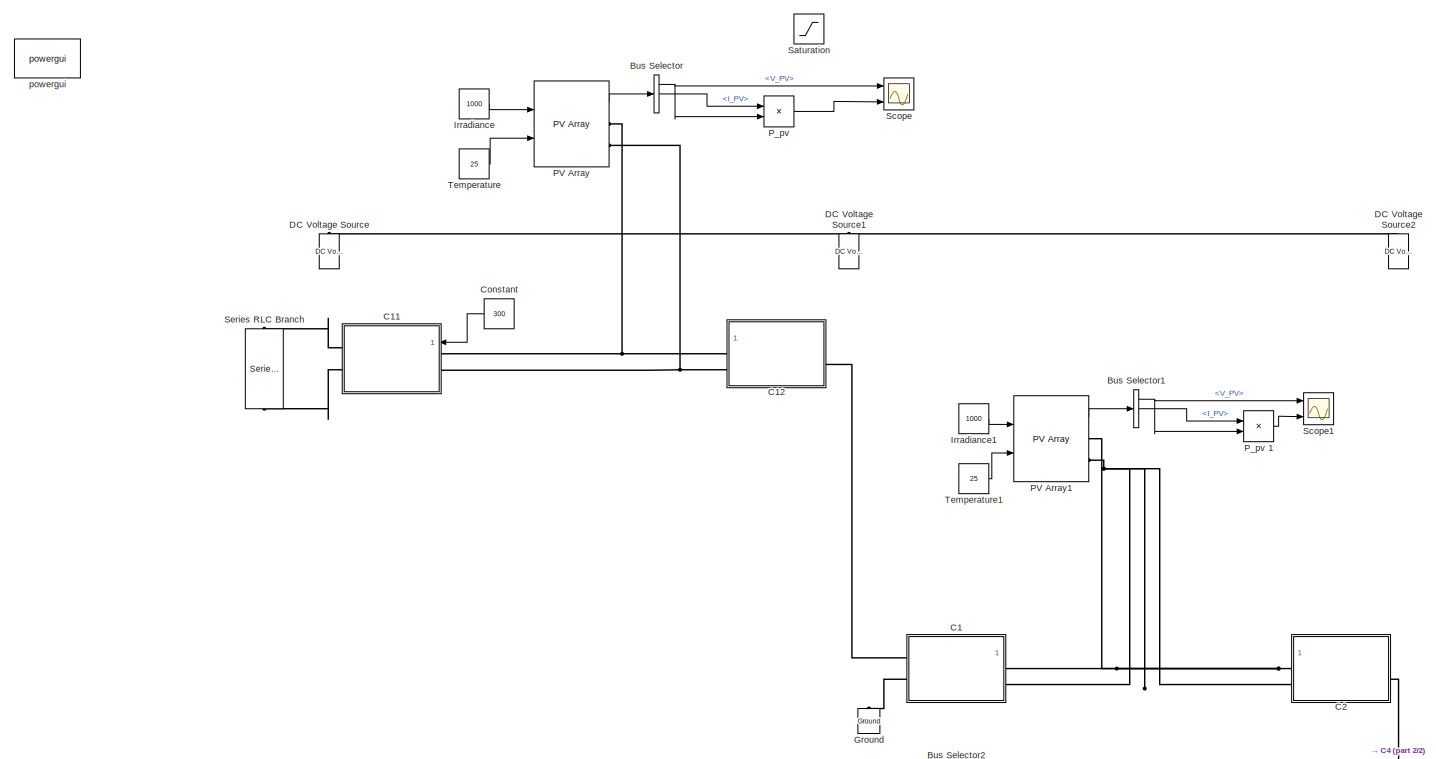
[diagram: root canvas - part 1/2, full width, middle band]
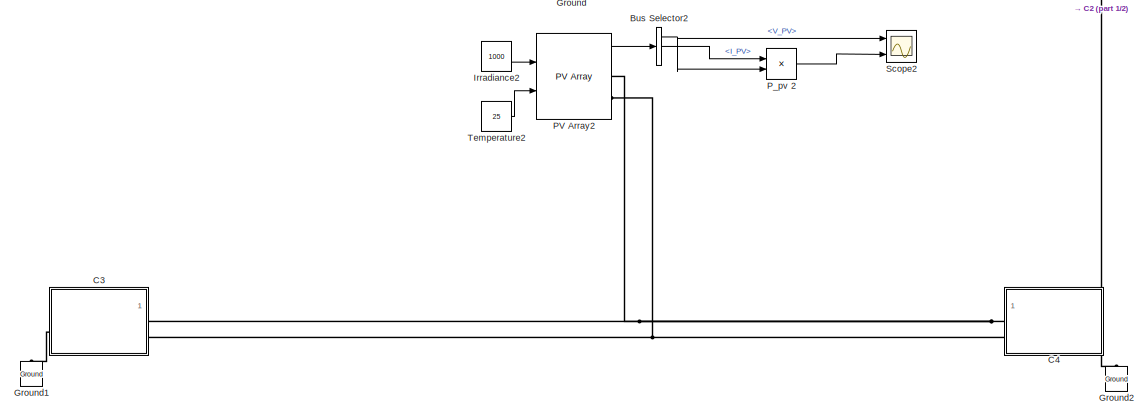
[diagram: root canvas - part 2/2, full width, bottom band]
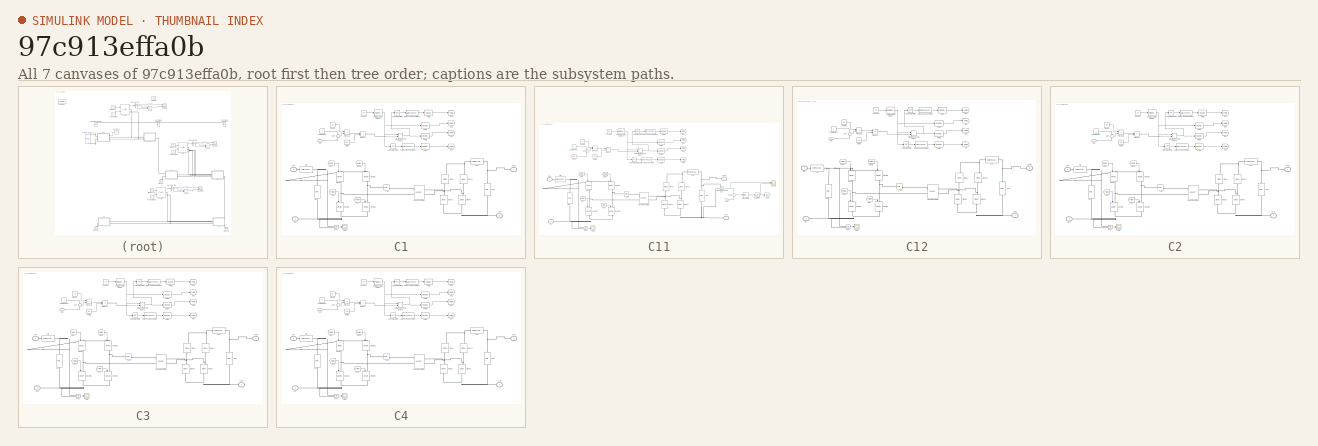
[diagram: thumbnail index - all 7 canvases of the model, root first then tree order]
MODEL slx_97c913effa0b
KIND model
CONFIG AbsTol = auto
CONFIG FixedStep = auto
CONFIG MaxStep = auto
CONFIG MinStep = auto
CONFIG RelTol = 1e-3
CONFIG SampleTimeConstraint = Unconstrained
CONFIG Solver = VariableStepAuto
CONFIG SolverMode = Auto
CONFIG SolverName = VariableStepAuto
CONFIG StartTime = 0.0
CONFIG StopTime = 0.02
BLOCK [BusSelector] Bus Selector
  OutputSignals = V_PV,I_PV,Irradiance (W/m2)
  Ports = [1, 3]
BLOCK [BusSelector] Bus Selector1
  OutputSignals = V_PV,I_PV,Irradiance (W/m2)
  Ports = [1, 3]
BLOCK [BusSelector] Bus Selector2
  OutputSignals = V_PV,I_PV,Irradiance (W/m2)
  Ports = [1, 3]
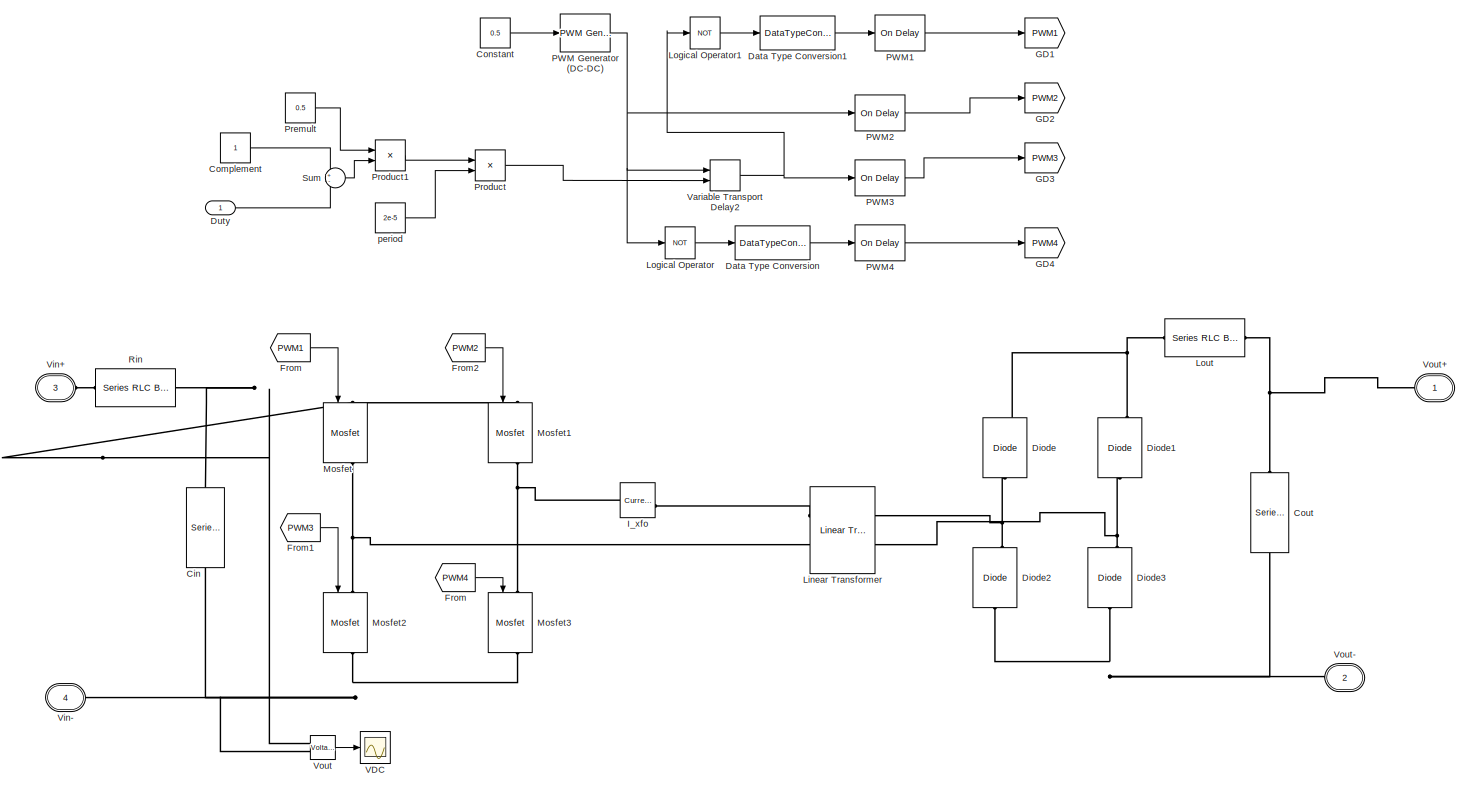
[diagram: C1 - part 1/1, most of the canvas]
BLOCK [SubSystem] C1
  Ports = [1, 0, 0, 0, 0, 2, 2]
  RequestExecContextInheritance = off
  Variant = off
BLOCK [Reference] C1/Cin  REF=powerlib/Elements/Series RLC Branch
  Ports = [0, 0, 0, 0, 0, 1, 1]
  SourceBlock = powerlib/Elements/Series RLC Branch
  SourceType = Series RLC Branch
BLOCK [Constant] C1/Complement
BLOCK [Constant] C1/Constant
  Value = 0.5
BLOCK [Reference] C1/Cout  REF=powerlib/Elements/Series RLC Branch
  Ports = [0, 0, 0, 0, 0, 1, 1]
  SourceBlock = powerlib/Elements/Series RLC Branch
  SourceType = Series RLC Branch
BLOCK [DataTypeConversion] C1/Data Type Conversion
  OutDataTypeStr = double
  RndMeth = Floor
  SaturateOnIntegerOverflow = off
BLOCK [DataTypeConversion] C1/Data Type Conversion1
  OutDataTypeStr = double
  RndMeth = Floor
  SaturateOnIntegerOverflow = off
BLOCK [Reference] C1/Diode  REF=powerlib/Power
Electronics/Diode
  Ports = [0, 1, 0, 0, 0, 1, 1]
  SourceBlock = powerlib/Power\nElectronics/Diode
  SourceType = Diode
BLOCK [Reference] C1/Diode1  REF=powerlib/Power
Electronics/Diode
  Ports = [0, 1, 0, 0, 0, 1, 1]
  SourceBlock = powerlib/Power\nElectronics/Diode
  SourceType = Diode
BLOCK [Reference] C1/Diode2  REF=powerlib/Power
Electronics/Diode
  Ports = [0, 1, 0, 0, 0, 1, 1]
  SourceBlock = powerlib/Power\nElectronics/Diode
  SourceType = Diode
BLOCK [Reference] C1/Diode3  REF=powerlib/Power
Electronics/Diode
  Ports = [0, 1, 0, 0, 0, 1, 1]
  SourceBlock = powerlib/Power\nElectronics/Diode
  SourceType = Diode
BLOCK [Inport] C1/Duty
  IconDisplay = Port number
BLOCK [From] C1/From
  GotoTag = PWM1
BLOCK [From] C1/From 
  GotoTag = PWM4
BLOCK [From] C1/From1
  GotoTag = PWM3
BLOCK [From] C1/From2
  GotoTag = PWM2
BLOCK [Goto] C1/GD1
  GotoTag = PWM1
BLOCK [Goto] C1/GD2
  GotoTag = PWM2
BLOCK [Goto] C1/GD3
  GotoTag = PWM3
BLOCK [Goto] C1/GD4 
  GotoTag = PWM4
BLOCK [Reference] C1/I_xfo  REF=powerlib/Measurements/Current Measurement
  Ports = [0, 1, 0, 0, 0, 1, 1]
  SourceBlock = powerlib/Measurements/Current Measurement
  SourceType = Current Measurement
  UserDataPersistent = on
BLOCK [Reference] C1/Linear Transformer  REF=powerlib/Elements/Linear Transformer
  Ports = [0, 0, 0, 0, 0, 2, 2]
  SourceBlock = powerlib/Elements/Linear Transformer
  SourceType = Linear Transformer
BLOCK [Logic] C1/Logical Operator
  AllPortsSameDT = off
  Inputs = 1
  Operator = NOT
  OutDataTypeStr = boolean
  Ports = [1, 1]
BLOCK [Logic] C1/Logical Operator1
  AllPortsSameDT = off
  Inputs = 1
  Operator = NOT
  OutDataTypeStr = boolean
  Ports = [1, 1]
BLOCK [Reference] C1/Lout  REF=powerlib/Elements/Series RLC Branch
  Ports = [0, 0, 0, 0, 0, 1, 1]
  SourceBlock = powerlib/Elements/Series RLC Branch
  SourceType = Series RLC Branch
BLOCK [Reference] C1/Mosfet  REF=powerlib/Power
Electronics/Mosfet
  Ports = [1, 1, 0, 0, 0, 1, 1]
  SourceBlock = powerlib/Power\nElectronics/Mosfet
  SourceType = Mosfet
BLOCK [Reference] C1/Mosfet1  REF=powerlib/Power
Electronics/Mosfet
  Ports = [1, 1, 0, 0, 0, 1, 1]
  SourceBlock = powerlib/Power\nElectronics/Mosfet
  SourceType = Mosfet
BLOCK [Reference] C1/Mosfet2  REF=powerlib/Power
Electronics/Mosfet
  Ports = [1, 1, 0, 0, 0, 1, 1]
  SourceBlock = powerlib/Power\nElectronics/Mosfet
  SourceType = Mosfet
BLOCK [Reference] C1/Mosfet3  REF=powerlib/Power
Electronics/Mosfet
  Ports = [1, 1, 0, 0, 0, 1, 1]
  SourceBlock = powerlib/Power\nElectronics/Mosfet
  SourceType = Mosfet
BLOCK [Reference] C1/PWM Generator (DC-DC)  REF=powerlib_meascontrol/Pulse & Signal
Generators/PWM Generator
(DC-DC)
  Ports = [1, 1]
  SourceBlock = powerlib_meascontrol/Pulse & Signal\nGenerators/PWM Generator\n(DC-DC)
  SourceType = PWM Generator (DC-DC)
BLOCK [Reference] C1/PWM1  REF=powerlib_meascontrol/Logic/On Delay
  Ports = [1, 1]
  SourceBlock = powerlib_meascontrol/Logic/On Delay
  SourceType = On/Off Delay
BLOCK [Reference] C1/PWM2  REF=powerlib_meascontrol/Logic/On Delay
  Ports = [1, 1]
  SourceBlock = powerlib_meascontrol/Logic/On Delay
  SourceType = On/Off Delay
BLOCK [Reference] C1/PWM3  REF=powerlib_meascontrol/Logic/On Delay
  Ports = [1, 1]
  SourceBlock = powerlib_meascontrol/Logic/On Delay
  SourceType = On/Off Delay
BLOCK [Reference] C1/PWM4  REF=powerlib_meascontrol/Logic/On Delay
  Ports = [1, 1]
  SourceBlock = powerlib_meascontrol/Logic/On Delay
  SourceType = On/Off Delay
BLOCK [Constant] C1/Premult
  Value = 0.5
BLOCK [Product] C1/Product
  InputSameDT = off
  OutDataTypeStr = Inherit: Inherit via internal rule
  Ports = [2, 1]
  RndMeth = Floor
  SaturateOnIntegerOverflow = off
BLOCK [Product] C1/Product1
  InputSameDT = off
  OutDataTypeStr = Inherit: Inherit via internal rule
  Ports = [2, 1]
  RndMeth = Floor
  SaturateOnIntegerOverflow = off
BLOCK [Reference] C1/Rin  REF=powerlib/Elements/Series RLC Branch
  Ports = [0, 0, 0, 0, 0, 1, 1]
  SourceBlock = powerlib/Elements/Series RLC Branch
  SourceType = Series RLC Branch
BLOCK [Sum] C1/Sum
  IconShape = round
  InputSameDT = off
  Inputs = +-
  OutDataTypeStr = Inherit: Inherit via internal rule
  Ports = [2, 1]
  SaturateOnIntegerOverflow = off
BLOCK [Scope] C1/VDC
  Ports = [1]
  ScopeSpecificationString = Simulink.scopes.TimeScopeBlockCfg('CurrentConfiguration', extmgr.ConfigurationSet(extmgr.Configuration('Core','General UI',true),extmgr.Configuration('Core','Source UI',true),extmgr.Configuration('Sources','WiredSimulink',true,'DataLoggingVariableName','ScopeData2'),extmgr.Configuration('Visuals','Time Domain',true,'SerializedDisplays',{struct('MinYLimReal','288.4827','MaxYLimReal','337.52032','YL...<+1417ch>  <repeated x6 — deduplicated; at blocks: VDC>
BLOCK [VariableTransportDelay] C1/Variable Transport Delay2
  MaximumDelay = 10
  Ports = [2, 1]
  ZeroDelay = on
BLOCK [PMIOPort] C1/Vin+
  Port = 3
  Side = Left
  Tag = PMCPort
BLOCK [PMIOPort] C1/Vin-
  Port = 4
  Side = Left
  Tag = PMCPort
BLOCK [Reference] C1/Vout  REF=powerlib/Measurements/Voltage Measurement
  Ports = [0, 1, 0, 0, 0, 2]
  SourceBlock = powerlib/Measurements/Voltage Measurement
  SourceType = Voltage Measurement
  UserDataPersistent = on
BLOCK [PMIOPort] C1/Vout+
  Port = 1
  Side = Right
  Tag = PMCPort
BLOCK [PMIOPort] C1/Vout-
  Port = 2
  Side = Right
  Tag = PMCPort
BLOCK [Constant] C1/period 
  Value = 2e-5
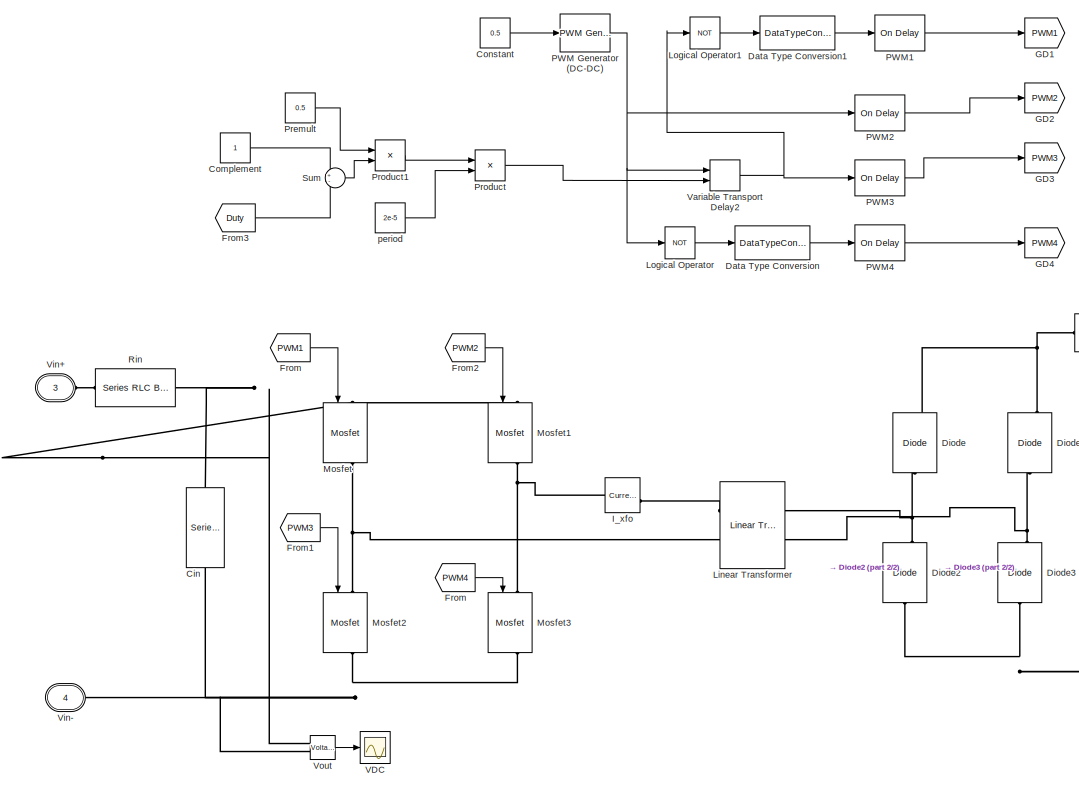
[diagram: C11 - part 1/2, left side, full height]
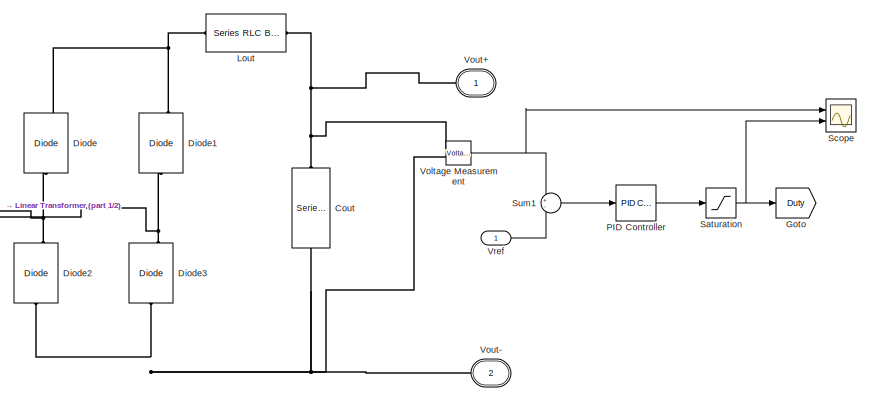
[diagram: C11 - part 2/2, middle right region]
BLOCK [SubSystem] C11
  Ports = [1, 0, 0, 0, 0, 2, 2]
  RequestExecContextInheritance = off
  Variant = off
BLOCK [Reference] C11/Cin  REF=powerlib/Elements/Series RLC Branch
  Ports = [0, 0, 0, 0, 0, 1, 1]
  SourceBlock = powerlib/Elements/Series RLC Branch
  SourceType = Series RLC Branch
BLOCK [Constant] C11/Complement
BLOCK [Constant] C11/Constant
  Value = 0.5
BLOCK [Reference] C11/Cout  REF=powerlib/Elements/Series RLC Branch
  Ports = [0, 0, 0, 0, 0, 1, 1]
  SourceBlock = powerlib/Elements/Series RLC Branch
  SourceType = Series RLC Branch
BLOCK [DataTypeConversion] C11/Data Type Conversion
  OutDataTypeStr = double
  RndMeth = Floor
  SaturateOnIntegerOverflow = off
BLOCK [DataTypeConversion] C11/Data Type Conversion1
  OutDataTypeStr = double
  RndMeth = Floor
  SaturateOnIntegerOverflow = off
BLOCK [Reference] C11/Diode  REF=powerlib/Power
Electronics/Diode
  Ports = [0, 1, 0, 0, 0, 1, 1]
  SourceBlock = powerlib/Power\nElectronics/Diode
  SourceType = Diode
BLOCK [Reference] C11/Diode1  REF=powerlib/Power
Electronics/Diode
  Ports = [0, 1, 0, 0, 0, 1, 1]
  SourceBlock = powerlib/Power\nElectronics/Diode
  SourceType = Diode
BLOCK [Reference] C11/Diode2  REF=powerlib/Power
Electronics/Diode
  Ports = [0, 1, 0, 0, 0, 1, 1]
  SourceBlock = powerlib/Power\nElectronics/Diode
  SourceType = Diode
BLOCK [Reference] C11/Diode3  REF=powerlib/Power
Electronics/Diode
  Ports = [0, 1, 0, 0, 0, 1, 1]
  SourceBlock = powerlib/Power\nElectronics/Diode
  SourceType = Diode
BLOCK [From] C11/From
  GotoTag = PWM1
BLOCK [From] C11/From 
  GotoTag = PWM4
BLOCK [From] C11/From1
  GotoTag = PWM3
BLOCK [From] C11/From2
  GotoTag = PWM2
BLOCK [From] C11/From3
  GotoTag = Duty
BLOCK [Goto] C11/GD1
  GotoTag = PWM1
BLOCK [Goto] C11/GD2
  GotoTag = PWM2
BLOCK [Goto] C11/GD3
  GotoTag = PWM3
BLOCK [Goto] C11/GD4 
  GotoTag = PWM4
BLOCK [Goto] C11/Goto
  GotoTag = Duty
BLOCK [Reference] C11/I_xfo  REF=powerlib/Measurements/Current Measurement
  Ports = [0, 1, 0, 0, 0, 1, 1]
  SourceBlock = powerlib/Measurements/Current Measurement
  SourceType = Current Measurement
  UserDataPersistent = on
BLOCK [Reference] C11/Linear Transformer  REF=powerlib/Elements/Linear Transformer
  Ports = [0, 0, 0, 0, 0, 2, 2]
  SourceBlock = powerlib/Elements/Linear Transformer
  SourceType = Linear Transformer
BLOCK [Logic] C11/Logical Operator
  AllPortsSameDT = off
  Inputs = 1
  Operator = NOT
  OutDataTypeStr = boolean
  Ports = [1, 1]
BLOCK [Logic] C11/Logical Operator1
  AllPortsSameDT = off
  Inputs = 1
  Operator = NOT
  OutDataTypeStr = boolean
  Ports = [1, 1]
BLOCK [Reference] C11/Lout  REF=powerlib/Elements/Series RLC Branch
  Ports = [0, 0, 0, 0, 0, 1, 1]
  SourceBlock = powerlib/Elements/Series RLC Branch
  SourceType = Series RLC Branch
BLOCK [Reference] C11/Mosfet  REF=powerlib/Power
Electronics/Mosfet
  Ports = [1, 1, 0, 0, 0, 1, 1]
  SourceBlock = powerlib/Power\nElectronics/Mosfet
  SourceType = Mosfet
BLOCK [Reference] C11/Mosfet1  REF=powerlib/Power
Electronics/Mosfet
  Ports = [1, 1, 0, 0, 0, 1, 1]
  SourceBlock = powerlib/Power\nElectronics/Mosfet
  SourceType = Mosfet
BLOCK [Reference] C11/Mosfet2  REF=powerlib/Power
Electronics/Mosfet
  Ports = [1, 1, 0, 0, 0, 1, 1]
  SourceBlock = powerlib/Power\nElectronics/Mosfet
  SourceType = Mosfet
BLOCK [Reference] C11/Mosfet3  REF=powerlib/Power
Electronics/Mosfet
  Ports = [1, 1, 0, 0, 0, 1, 1]
  SourceBlock = powerlib/Power\nElectronics/Mosfet
  SourceType = Mosfet
BLOCK [Reference] C11/PID Controller  REF=simulink/Continuous/PID Controller
  Ports = [1, 1]
  SourceBlock = simulink/Continuous/PID Controller
  SourceType = PID 1dof
BLOCK [Reference] C11/PWM Generator (DC-DC)  REF=powerlib_meascontrol/Pulse & Signal
Generators/PWM Generator
(DC-DC)
  Ports = [1, 1]
  SourceBlock = powerlib_meascontrol/Pulse & Signal\nGenerators/PWM Generator\n(DC-DC)
  SourceType = PWM Generator (DC-DC)
BLOCK [Reference] C11/PWM1  REF=powerlib_meascontrol/Logic/On Delay
  Ports = [1, 1]
  SourceBlock = powerlib_meascontrol/Logic/On Delay
  SourceType = On/Off Delay
BLOCK [Reference] C11/PWM2  REF=powerlib_meascontrol/Logic/On Delay
  Ports = [1, 1]
  SourceBlock = powerlib_meascontrol/Logic/On Delay
  SourceType = On/Off Delay
BLOCK [Reference] C11/PWM3  REF=powerlib_meascontrol/Logic/On Delay
  Ports = [1, 1]
  SourceBlock = powerlib_meascontrol/Logic/On Delay
  SourceType = On/Off Delay
BLOCK [Reference] C11/PWM4  REF=powerlib_meascontrol/Logic/On Delay
  Ports = [1, 1]
  SourceBlock = powerlib_meascontrol/Logic/On Delay
  SourceType = On/Off Delay
BLOCK [Constant] C11/Premult
  Value = 0.5
BLOCK [Product] C11/Product
  InputSameDT = off
  OutDataTypeStr = Inherit: Inherit via internal rule
  Ports = [2, 1]
  RndMeth = Floor
  SaturateOnIntegerOverflow = off
BLOCK [Product] C11/Product1
  InputSameDT = off
  OutDataTypeStr = Inherit: Inherit via internal rule
  Ports = [2, 1]
  RndMeth = Floor
  SaturateOnIntegerOverflow = off
BLOCK [Reference] C11/Rin  REF=powerlib/Elements/Series RLC Branch
  Ports = [0, 0, 0, 0, 0, 1, 1]
  SourceBlock = powerlib/Elements/Series RLC Branch
  SourceType = Series RLC Branch
BLOCK [Saturate] C11/Saturation
  InputPortMap = u0
  LowerLimit = 0
  Ports = [1, 1]
  UpperLimit = 1
BLOCK [Scope] C11/Scope
  NumInputPorts = 2
  Ports = [2]
  ScopeSpecificationString = Simulink.scopes.TimeScopeBlockCfg('CurrentConfiguration', extmgr.ConfigurationSet(extmgr.Configuration('Core','General UI',true),extmgr.Configuration('Core','Source UI',true),extmgr.Configuration('Sources','WiredSimulink',true,'DataLoggingVariableName','ScopeData4'),extmgr.Configuration('Visuals','Time Domain',true,'SerializedDisplays',{struct('MinYLimReal','-37.03154','MaxYLimReal','333.2839','YL...<+2140ch>
BLOCK [Sum] C11/Sum
  IconShape = round
  InputSameDT = off
  Inputs = +-
  OutDataTypeStr = Inherit: Inherit via internal rule
  Ports = [2, 1]
  SaturateOnIntegerOverflow = off
BLOCK [Sum] C11/Sum1
  IconShape = round
  InputSameDT = off
  Inputs = +-
  OutDataTypeStr = Inherit: Inherit via internal rule
  Ports = [2, 1]
  SaturateOnIntegerOverflow = off
BLOCK [Scope] C11/VDC
  Ports = [1]
BLOCK [VariableTransportDelay] C11/Variable Transport Delay2
  MaximumDelay = 10
  Ports = [2, 1]
  ZeroDelay = on
BLOCK [PMIOPort] C11/Vin+
  Port = 3
  Side = Left
  Tag = PMCPort
BLOCK [PMIOPort] C11/Vin-
  Port = 4
  Side = Left
  Tag = PMCPort
BLOCK [Reference] C11/Voltage Measurement  REF=powerlib/Measurements/Voltage Measurement
  Ports = [0, 1, 0, 0, 0, 2]
  SourceBlock = powerlib/Measurements/Voltage Measurement
  SourceType = Voltage Measurement
  UserDataPersistent = on
BLOCK [Reference] C11/Vout  REF=powerlib/Measurements/Voltage Measurement
  Ports = [0, 1, 0, 0, 0, 2]
  SourceBlock = powerlib/Measurements/Voltage Measurement
  SourceType = Voltage Measurement
  UserDataPersistent = on
BLOCK [PMIOPort] C11/Vout+
  Port = 1
  Side = Right
  Tag = PMCPort
BLOCK [PMIOPort] C11/Vout-
  Port = 2
  Side = Right
  Tag = PMCPort
BLOCK [Inport] C11/Vref
  IconDisplay = Port number
BLOCK [Constant] C11/period 
  Value = 2e-5
BLOCK [SubSystem] C12
  Ports = [1, 0, 0, 0, 0, 2, 2]
  RequestExecContextInheritance = off
  Variant = off
BLOCK [Reference] C12/Cin  REF=powerlib/Elements/Series RLC Branch
  Ports = [0, 0, 0, 0, 0, 1, 1]
  SourceBlock = powerlib/Elements/Series RLC Branch
  SourceType = Series RLC Branch
BLOCK [Constant] C12/Complement
BLOCK [Constant] C12/Constant
  Value = 0.5
BLOCK [Reference] C12/Cout  REF=powerlib/Elements/Series RLC Branch
  Ports = [0, 0, 0, 0, 0, 1, 1]
  SourceBlock = powerlib/Elements/Series RLC Branch
  SourceType = Series RLC Branch
BLOCK [DataTypeConversion] C12/Data Type Conversion
  OutDataTypeStr = double
  RndMeth = Floor
  SaturateOnIntegerOverflow = off
BLOCK [DataTypeConversion] C12/Data Type Conversion1
  OutDataTypeStr = double
  RndMeth = Floor
  SaturateOnIntegerOverflow = off
BLOCK [Reference] C12/Diode  REF=powerlib/Power
Electronics/Diode
  Ports = [0, 1, 0, 0, 0, 1, 1]
  SourceBlock = powerlib/Power\nElectronics/Diode
  SourceType = Diode
BLOCK [Reference] C12/Diode1  REF=powerlib/Power
Electronics/Diode
  Ports = [0, 1, 0, 0, 0, 1, 1]
  SourceBlock = powerlib/Power\nElectronics/Diode
  SourceType = Diode
BLOCK [Reference] C12/Diode2  REF=powerlib/Power
Electronics/Diode
  Ports = [0, 1, 0, 0, 0, 1, 1]
  SourceBlock = powerlib/Power\nElectronics/Diode
  SourceType = Diode
BLOCK [Reference] C12/Diode3  REF=powerlib/Power
Electronics/Diode
  Ports = [0, 1, 0, 0, 0, 1, 1]
  SourceBlock = powerlib/Power\nElectronics/Diode
  SourceType = Diode
BLOCK [Inport] C12/Duty
  IconDisplay = Port number
BLOCK [From] C12/From
  GotoTag = PWM1
BLOCK [From] C12/From 
  GotoTag = PWM4
BLOCK [From] C12/From1
  GotoTag = PWM3
BLOCK [From] C12/From2
  GotoTag = PWM2
BLOCK [Goto] C12/GD1
  GotoTag = PWM1
BLOCK [Goto] C12/GD2
  GotoTag = PWM2
BLOCK [Goto] C12/GD3
  GotoTag = PWM3
BLOCK [Goto] C12/GD4 
  GotoTag = PWM4
BLOCK [Reference] C12/I_xfo  REF=powerlib/Measurements/Current Measurement
  Ports = [0, 1, 0, 0, 0, 1, 1]
  SourceBlock = powerlib/Measurements/Current Measurement
  SourceType = Current Measurement
  UserDataPersistent = on
BLOCK [Reference] C12/Linear Transformer  REF=powerlib/Elements/Linear Transformer
  Ports = [0, 0, 0, 0, 0, 2, 2]
  SourceBlock = powerlib/Elements/Linear Transformer
  SourceType = Linear Transformer
BLOCK [Logic] C12/Logical Operator
  AllPortsSameDT = off
  Inputs = 1
  Operator = NOT
  OutDataTypeStr = boolean
  Ports = [1, 1]
BLOCK [Logic] C12/Logical Operator1
  AllPortsSameDT = off
  Inputs = 1
  Operator = NOT
  OutDataTypeStr = boolean
  Ports = [1, 1]
BLOCK [Reference] C12/Lout  REF=powerlib/Elements/Series RLC Branch
  Ports = [0, 0, 0, 0, 0, 1, 1]
  SourceBlock = powerlib/Elements/Series RLC Branch
  SourceType = Series RLC Branch
BLOCK [Reference] C12/Mosfet  REF=powerlib/Power
Electronics/Mosfet
  Ports = [1, 1, 0, 0, 0, 1, 1]
  SourceBlock = powerlib/Power\nElectronics/Mosfet
  SourceType = Mosfet
BLOCK [Reference] C12/Mosfet1  REF=powerlib/Power
Electronics/Mosfet
  Ports = [1, 1, 0, 0, 0, 1, 1]
  SourceBlock = powerlib/Power\nElectronics/Mosfet
  SourceType = Mosfet
BLOCK [Reference] C12/Mosfet2  REF=powerlib/Power
Electronics/Mosfet
  Ports = [1, 1, 0, 0, 0, 1, 1]
  SourceBlock = powerlib/Power\nElectronics/Mosfet
  SourceType = Mosfet
BLOCK [Reference] C12/Mosfet3  REF=powerlib/Power
Electronics/Mosfet
  Ports = [1, 1, 0, 0, 0, 1, 1]
  SourceBlock = powerlib/Power\nElectronics/Mosfet
  SourceType = Mosfet
BLOCK [Reference] C12/PWM Generator (DC-DC)  REF=powerlib_meascontrol/Pulse & Signal
Generators/PWM Generator
(DC-DC)
  Ports = [1, 1]
  SourceBlock = powerlib_meascontrol/Pulse & Signal\nGenerators/PWM Generator\n(DC-DC)
  SourceType = PWM Generator (DC-DC)
BLOCK [Reference] C12/PWM1  REF=powerlib_meascontrol/Logic/On Delay
  Ports = [1, 1]
  SourceBlock = powerlib_meascontrol/Logic/On Delay
  SourceType = On/Off Delay
BLOCK [Reference] C12/PWM2  REF=powerlib_meascontrol/Logic/On Delay
  Ports = [1, 1]
  SourceBlock = powerlib_meascontrol/Logic/On Delay
  SourceType = On/Off Delay
BLOCK [Reference] C12/PWM3  REF=powerlib_meascontrol/Logic/On Delay
  Ports = [1, 1]
  SourceBlock = powerlib_meascontrol/Logic/On Delay
  SourceType = On/Off Delay
BLOCK [Reference] C12/PWM4  REF=powerlib_meascontrol/Logic/On Delay
  Ports = [1, 1]
  SourceBlock = powerlib_meascontrol/Logic/On Delay
  SourceType = On/Off Delay
BLOCK [Constant] C12/Premult
  Value = 0.5
BLOCK [Product] C12/Product
  InputSameDT = off
  OutDataTypeStr = Inherit: Inherit via internal rule
  Ports = [2, 1]
  RndMeth = Floor
  SaturateOnIntegerOverflow = off
BLOCK [Product] C12/Product1
  InputSameDT = off
  OutDataTypeStr = Inherit: Inherit via internal rule
  Ports = [2, 1]
  RndMeth = Floor
  SaturateOnIntegerOverflow = off
BLOCK [Reference] C12/Rin  REF=powerlib/Elements/Series RLC Branch
  Ports = [0, 0, 0, 0, 0, 1, 1]
  SourceBlock = powerlib/Elements/Series RLC Branch
  SourceType = Series RLC Branch
BLOCK [Sum] C12/Sum
  IconShape = round
  InputSameDT = off
  Inputs = +-
  OutDataTypeStr = Inherit: Inherit via internal rule
  Ports = [2, 1]
  SaturateOnIntegerOverflow = off
BLOCK [Scope] C12/VDC
  Ports = [1]
BLOCK [VariableTransportDelay] C12/Variable Transport Delay2
  MaximumDelay = 10
  Ports = [2, 1]
  ZeroDelay = on
BLOCK [PMIOPort] C12/Vin+
  Port = 3
  Side = Left
  Tag = PMCPort
BLOCK [PMIOPort] C12/Vin-
  Port = 4
  Side = Left
  Tag = PMCPort
BLOCK [Reference] C12/Vout  REF=powerlib/Measurements/Voltage Measurement
  Ports = [0, 1, 0, 0, 0, 2]
  SourceBlock = powerlib/Measurements/Voltage Measurement
  SourceType = Voltage Measurement
  UserDataPersistent = on
BLOCK [PMIOPort] C12/Vout+
  Port = 1
  Side = Right
  Tag = PMCPort
BLOCK [PMIOPort] C12/Vout-
  Port = 2
  Side = Right
  Tag = PMCPort
BLOCK [Constant] C12/period 
  Value = 2e-5
BLOCK [SubSystem] C2
  Ports = [1, 0, 0, 0, 0, 2, 2]
  RequestExecContextInheritance = off
  Variant = off
BLOCK [Reference] C2/Cin  REF=powerlib/Elements/Series RLC Branch
  Ports = [0, 0, 0, 0, 0, 1, 1]
  SourceBlock = powerlib/Elements/Series RLC Branch
  SourceType = Series RLC Branch
BLOCK [Constant] C2/Complement
BLOCK [Constant] C2/Constant
  Value = 0.5
BLOCK [Reference] C2/Cout  REF=powerlib/Elements/Series RLC Branch
  Ports = [0, 0, 0, 0, 0, 1, 1]
  SourceBlock = powerlib/Elements/Series RLC Branch
  SourceType = Series RLC Branch
BLOCK [DataTypeConversion] C2/Data Type Conversion
  OutDataTypeStr = double
  RndMeth = Floor
  SaturateOnIntegerOverflow = off
BLOCK [DataTypeConversion] C2/Data Type Conversion1
  OutDataTypeStr = double
  RndMeth = Floor
  SaturateOnIntegerOverflow = off
BLOCK [Reference] C2/Diode  REF=powerlib/Power
Electronics/Diode
  Ports = [0, 1, 0, 0, 0, 1, 1]
  SourceBlock = powerlib/Power\nElectronics/Diode
  SourceType = Diode
BLOCK [Reference] C2/Diode1  REF=powerlib/Power
Electronics/Diode
  Ports = [0, 1, 0, 0, 0, 1, 1]
  SourceBlock = powerlib/Power\nElectronics/Diode
  SourceType = Diode
BLOCK [Reference] C2/Diode2  REF=powerlib/Power
Electronics/Diode
  Ports = [0, 1, 0, 0, 0, 1, 1]
  SourceBlock = powerlib/Power\nElectronics/Diode
  SourceType = Diode
BLOCK [Reference] C2/Diode3  REF=powerlib/Power
Electronics/Diode
  Ports = [0, 1, 0, 0, 0, 1, 1]
  SourceBlock = powerlib/Power\nElectronics/Diode
  SourceType = Diode
BLOCK [Inport] C2/Duty
  IconDisplay = Port number
BLOCK [From] C2/From
  GotoTag = PWM1
BLOCK [From] C2/From 
  GotoTag = PWM4
BLOCK [From] C2/From1
  GotoTag = PWM3
BLOCK [From] C2/From2
  GotoTag = PWM2
BLOCK [Goto] C2/GD1
  GotoTag = PWM1
BLOCK [Goto] C2/GD2
  GotoTag = PWM2
BLOCK [Goto] C2/GD3
  GotoTag = PWM3
BLOCK [Goto] C2/GD4 
  GotoTag = PWM4
BLOCK [Reference] C2/I_xfo  REF=powerlib/Measurements/Current Measurement
  Ports = [0, 1, 0, 0, 0, 1, 1]
  SourceBlock = powerlib/Measurements/Current Measurement
  SourceType = Current Measurement
  UserDataPersistent = on
BLOCK [Reference] C2/Linear Transformer  REF=powerlib/Elements/Linear Transformer
  Ports = [0, 0, 0, 0, 0, 2, 2]
  SourceBlock = powerlib/Elements/Linear Transformer
  SourceType = Linear Transformer
BLOCK [Logic] C2/Logical Operator
  AllPortsSameDT = off
  Inputs = 1
  Operator = NOT
  OutDataTypeStr = boolean
  Ports = [1, 1]
BLOCK [Logic] C2/Logical Operator1
  AllPortsSameDT = off
  Inputs = 1
  Operator = NOT
  OutDataTypeStr = boolean
  Ports = [1, 1]
BLOCK [Reference] C2/Lout  REF=powerlib/Elements/Series RLC Branch
  Ports = [0, 0, 0, 0, 0, 1, 1]
  SourceBlock = powerlib/Elements/Series RLC Branch
  SourceType = Series RLC Branch
BLOCK [Reference] C2/Mosfet  REF=powerlib/Power
Electronics/Mosfet
  Ports = [1, 1, 0, 0, 0, 1, 1]
  SourceBlock = powerlib/Power\nElectronics/Mosfet
  SourceType = Mosfet
BLOCK [Reference] C2/Mosfet1  REF=powerlib/Power
Electronics/Mosfet
  Ports = [1, 1, 0, 0, 0, 1, 1]
  SourceBlock = powerlib/Power\nElectronics/Mosfet
  SourceType = Mosfet
BLOCK [Reference] C2/Mosfet2  REF=powerlib/Power
Electronics/Mosfet
  Ports = [1, 1, 0, 0, 0, 1, 1]
  SourceBlock = powerlib/Power\nElectronics/Mosfet
  SourceType = Mosfet
BLOCK [Reference] C2/Mosfet3  REF=powerlib/Power
Electronics/Mosfet
  Ports = [1, 1, 0, 0, 0, 1, 1]
  SourceBlock = powerlib/Power\nElectronics/Mosfet
  SourceType = Mosfet
BLOCK [Reference] C2/PWM Generator (DC-DC)  REF=powerlib_meascontrol/Pulse & Signal
Generators/PWM Generator
(DC-DC)
  Ports = [1, 1]
  SourceBlock = powerlib_meascontrol/Pulse & Signal\nGenerators/PWM Generator\n(DC-DC)
  SourceType = PWM Generator (DC-DC)
BLOCK [Reference] C2/PWM1  REF=powerlib_meascontrol/Logic/On Delay
  Ports = [1, 1]
  SourceBlock = powerlib_meascontrol/Logic/On Delay
  SourceType = On/Off Delay
BLOCK [Reference] C2/PWM2  REF=powerlib_meascontrol/Logic/On Delay
  Ports = [1, 1]
  SourceBlock = powerlib_meascontrol/Logic/On Delay
  SourceType = On/Off Delay
BLOCK [Reference] C2/PWM3  REF=powerlib_meascontrol/Logic/On Delay
  Ports = [1, 1]
  SourceBlock = powerlib_meascontrol/Logic/On Delay
  SourceType = On/Off Delay
BLOCK [Reference] C2/PWM4  REF=powerlib_meascontrol/Logic/On Delay
  Ports = [1, 1]
  SourceBlock = powerlib_meascontrol/Logic/On Delay
  SourceType = On/Off Delay
BLOCK [Constant] C2/Premult
  Value = 0.5
BLOCK [Product] C2/Product
  InputSameDT = off
  OutDataTypeStr = Inherit: Inherit via internal rule
  Ports = [2, 1]
  RndMeth = Floor
  SaturateOnIntegerOverflow = off
BLOCK [Product] C2/Product1
  InputSameDT = off
  OutDataTypeStr = Inherit: Inherit via internal rule
  Ports = [2, 1]
  RndMeth = Floor
  SaturateOnIntegerOverflow = off
BLOCK [Reference] C2/Rin  REF=powerlib/Elements/Series RLC Branch
  Ports = [0, 0, 0, 0, 0, 1, 1]
  SourceBlock = powerlib/Elements/Series RLC Branch
  SourceType = Series RLC Branch
BLOCK [Sum] C2/Sum
  IconShape = round
  InputSameDT = off
  Inputs = +-
  OutDataTypeStr = Inherit: Inherit via internal rule
  Ports = [2, 1]
  SaturateOnIntegerOverflow = off
BLOCK [Scope] C2/VDC
  Ports = [1]
BLOCK [VariableTransportDelay] C2/Variable Transport Delay2
  MaximumDelay = 10
  Ports = [2, 1]
  ZeroDelay = on
BLOCK [PMIOPort] C2/Vin+
  Port = 3
  Side = Left
  Tag = PMCPort
BLOCK [PMIOPort] C2/Vin-
  Port = 4
  Side = Left
  Tag = PMCPort
BLOCK [Reference] C2/Vout  REF=powerlib/Measurements/Voltage Measurement
  Ports = [0, 1, 0, 0, 0, 2]
  SourceBlock = powerlib/Measurements/Voltage Measurement
  SourceType = Voltage Measurement
  UserDataPersistent = on
BLOCK [PMIOPort] C2/Vout+
  Port = 1
  Side = Right
  Tag = PMCPort
BLOCK [PMIOPort] C2/Vout-
  Port = 2
  Side = Right
  Tag = PMCPort
BLOCK [Constant] C2/period 
  Value = 2e-5
BLOCK [SubSystem] C3
  Ports = [1, 0, 0, 0, 0, 2, 2]
  RequestExecContextInheritance = off
  Variant = off
BLOCK [Reference] C3/Cin  REF=powerlib/Elements/Series RLC Branch
  Ports = [0, 0, 0, 0, 0, 1, 1]
  SourceBlock = powerlib/Elements/Series RLC Branch
  SourceType = Series RLC Branch
BLOCK [Constant] C3/Complement
BLOCK [Constant] C3/Constant
  Value = 0.5
BLOCK [Reference] C3/Cout  REF=powerlib/Elements/Series RLC Branch
  Ports = [0, 0, 0, 0, 0, 1, 1]
  SourceBlock = powerlib/Elements/Series RLC Branch
  SourceType = Series RLC Branch
BLOCK [DataTypeConversion] C3/Data Type Conversion
  OutDataTypeStr = double
  RndMeth = Floor
  SaturateOnIntegerOverflow = off
BLOCK [DataTypeConversion] C3/Data Type Conversion1
  OutDataTypeStr = double
  RndMeth = Floor
  SaturateOnIntegerOverflow = off
BLOCK [Reference] C3/Diode  REF=powerlib/Power
Electronics/Diode
  Ports = [0, 1, 0, 0, 0, 1, 1]
  SourceBlock = powerlib/Power\nElectronics/Diode
  SourceType = Diode
BLOCK [Reference] C3/Diode1  REF=powerlib/Power
Electronics/Diode
  Ports = [0, 1, 0, 0, 0, 1, 1]
  SourceBlock = powerlib/Power\nElectronics/Diode
  SourceType = Diode
BLOCK [Reference] C3/Diode2  REF=powerlib/Power
Electronics/Diode
  Ports = [0, 1, 0, 0, 0, 1, 1]
  SourceBlock = powerlib/Power\nElectronics/Diode
  SourceType = Diode
BLOCK [Reference] C3/Diode3  REF=powerlib/Power
Electronics/Diode
  Ports = [0, 1, 0, 0, 0, 1, 1]
  SourceBlock = powerlib/Power\nElectronics/Diode
  SourceType = Diode
BLOCK [Inport] C3/Duty
  IconDisplay = Port number
BLOCK [From] C3/From
  GotoTag = PWM1
BLOCK [From] C3/From 
  GotoTag = PWM4
BLOCK [From] C3/From1
  GotoTag = PWM3
BLOCK [From] C3/From2
  GotoTag = PWM2
BLOCK [Goto] C3/GD1
  GotoTag = PWM1
BLOCK [Goto] C3/GD2
  GotoTag = PWM2
BLOCK [Goto] C3/GD3
  GotoTag = PWM3
BLOCK [Goto] C3/GD4 
  GotoTag = PWM4
BLOCK [Reference] C3/I_xfo  REF=powerlib/Measurements/Current Measurement
  Ports = [0, 1, 0, 0, 0, 1, 1]
  SourceBlock = powerlib/Measurements/Current Measurement
  SourceType = Current Measurement
  UserDataPersistent = on
BLOCK [Reference] C3/Linear Transformer  REF=powerlib/Elements/Linear Transformer
  Ports = [0, 0, 0, 0, 0, 2, 2]
  SourceBlock = powerlib/Elements/Linear Transformer
  SourceType = Linear Transformer
BLOCK [Logic] C3/Logical Operator
  AllPortsSameDT = off
  Inputs = 1
  Operator = NOT
  OutDataTypeStr = boolean
  Ports = [1, 1]
BLOCK [Logic] C3/Logical Operator1
  AllPortsSameDT = off
  Inputs = 1
  Operator = NOT
  OutDataTypeStr = boolean
  Ports = [1, 1]
BLOCK [Reference] C3/Lout  REF=powerlib/Elements/Series RLC Branch
  Ports = [0, 0, 0, 0, 0, 1, 1]
  SourceBlock = powerlib/Elements/Series RLC Branch
  SourceType = Series RLC Branch
BLOCK [Reference] C3/Mosfet  REF=powerlib/Power
Electronics/Mosfet
  Ports = [1, 1, 0, 0, 0, 1, 1]
  SourceBlock = powerlib/Power\nElectronics/Mosfet
  SourceType = Mosfet
BLOCK [Reference] C3/Mosfet1  REF=powerlib/Power
Electronics/Mosfet
  Ports = [1, 1, 0, 0, 0, 1, 1]
  SourceBlock = powerlib/Power\nElectronics/Mosfet
  SourceType = Mosfet
BLOCK [Reference] C3/Mosfet2  REF=powerlib/Power
Electronics/Mosfet
  Ports = [1, 1, 0, 0, 0, 1, 1]
  SourceBlock = powerlib/Power\nElectronics/Mosfet
  SourceType = Mosfet
BLOCK [Reference] C3/Mosfet3  REF=powerlib/Power
Electronics/Mosfet
  Ports = [1, 1, 0, 0, 0, 1, 1]
  SourceBlock = powerlib/Power\nElectronics/Mosfet
  SourceType = Mosfet
BLOCK [Reference] C3/PWM Generator (DC-DC)  REF=powerlib_meascontrol/Pulse & Signal
Generators/PWM Generator
(DC-DC)
  Ports = [1, 1]
  SourceBlock = powerlib_meascontrol/Pulse & Signal\nGenerators/PWM Generator\n(DC-DC)
  SourceType = PWM Generator (DC-DC)
BLOCK [Reference] C3/PWM1  REF=powerlib_meascontrol/Logic/On Delay
  Ports = [1, 1]
  SourceBlock = powerlib_meascontrol/Logic/On Delay
  SourceType = On/Off Delay
BLOCK [Reference] C3/PWM2  REF=powerlib_meascontrol/Logic/On Delay
  Ports = [1, 1]
  SourceBlock = powerlib_meascontrol/Logic/On Delay
  SourceType = On/Off Delay
BLOCK [Reference] C3/PWM3  REF=powerlib_meascontrol/Logic/On Delay
  Ports = [1, 1]
  SourceBlock = powerlib_meascontrol/Logic/On Delay
  SourceType = On/Off Delay
BLOCK [Reference] C3/PWM4  REF=powerlib_meascontrol/Logic/On Delay
  Ports = [1, 1]
  SourceBlock = powerlib_meascontrol/Logic/On Delay
  SourceType = On/Off Delay
BLOCK [Constant] C3/Premult
  Value = 0.5
BLOCK [Product] C3/Product
  InputSameDT = off
  OutDataTypeStr = Inherit: Inherit via internal rule
  Ports = [2, 1]
  RndMeth = Floor
  SaturateOnIntegerOverflow = off
BLOCK [Product] C3/Product1
  InputSameDT = off
  OutDataTypeStr = Inherit: Inherit via internal rule
  Ports = [2, 1]
  RndMeth = Floor
  SaturateOnIntegerOverflow = off
BLOCK [Reference] C3/Rin  REF=powerlib/Elements/Series RLC Branch
  Ports = [0, 0, 0, 0, 0, 1, 1]
  SourceBlock = powerlib/Elements/Series RLC Branch
  SourceType = Series RLC Branch
BLOCK [Sum] C3/Sum
  IconShape = round
  InputSameDT = off
  Inputs = +-
  OutDataTypeStr = Inherit: Inherit via internal rule
  Ports = [2, 1]
  SaturateOnIntegerOverflow = off
BLOCK [Scope] C3/VDC
  Ports = [1]
BLOCK [VariableTransportDelay] C3/Variable Transport Delay2
  MaximumDelay = 10
  Ports = [2, 1]
  ZeroDelay = on
BLOCK [PMIOPort] C3/Vin+
  Port = 3
  Side = Left
  Tag = PMCPort
BLOCK [PMIOPort] C3/Vin-
  Port = 4
  Side = Left
  Tag = PMCPort
BLOCK [Reference] C3/Vout  REF=powerlib/Measurements/Voltage Measurement
  Ports = [0, 1, 0, 0, 0, 2]
  SourceBlock = powerlib/Measurements/Voltage Measurement
  SourceType = Voltage Measurement
  UserDataPersistent = on
BLOCK [PMIOPort] C3/Vout+
  Port = 1
  Side = Right
  Tag = PMCPort
BLOCK [PMIOPort] C3/Vout-
  Port = 2
  Side = Right
  Tag = PMCPort
BLOCK [Constant] C3/period 
  Value = 2e-5
BLOCK [SubSystem] C4
  Ports = [1, 0, 0, 0, 0, 2, 2]
  RequestExecContextInheritance = off
  Variant = off
BLOCK [Reference] C4/Cin  REF=powerlib/Elements/Series RLC Branch
  Ports = [0, 0, 0, 0, 0, 1, 1]
  SourceBlock = powerlib/Elements/Series RLC Branch
  SourceType = Series RLC Branch
BLOCK [Constant] C4/Complement
BLOCK [Constant] C4/Constant
  Value = 0.5
BLOCK [Reference] C4/Cout  REF=powerlib/Elements/Series RLC Branch
  Ports = [0, 0, 0, 0, 0, 1, 1]
  SourceBlock = powerlib/Elements/Series RLC Branch
  SourceType = Series RLC Branch
BLOCK [DataTypeConversion] C4/Data Type Conversion
  OutDataTypeStr = double
  RndMeth = Floor
  SaturateOnIntegerOverflow = off
BLOCK [DataTypeConversion] C4/Data Type Conversion1
  OutDataTypeStr = double
  RndMeth = Floor
  SaturateOnIntegerOverflow = off
BLOCK [Reference] C4/Diode  REF=powerlib/Power
Electronics/Diode
  Ports = [0, 1, 0, 0, 0, 1, 1]
  SourceBlock = powerlib/Power\nElectronics/Diode
  SourceType = Diode
BLOCK [Reference] C4/Diode1  REF=powerlib/Power
Electronics/Diode
  Ports = [0, 1, 0, 0, 0, 1, 1]
  SourceBlock = powerlib/Power\nElectronics/Diode
  SourceType = Diode
BLOCK [Reference] C4/Diode2  REF=powerlib/Power
Electronics/Diode
  Ports = [0, 1, 0, 0, 0, 1, 1]
  SourceBlock = powerlib/Power\nElectronics/Diode
  SourceType = Diode
BLOCK [Reference] C4/Diode3  REF=powerlib/Power
Electronics/Diode
  Ports = [0, 1, 0, 0, 0, 1, 1]
  SourceBlock = powerlib/Power\nElectronics/Diode
  SourceType = Diode
BLOCK [Inport] C4/Duty
  IconDisplay = Port number
BLOCK [From] C4/From
  GotoTag = PWM1
BLOCK [From] C4/From 
  GotoTag = PWM4
BLOCK [From] C4/From1
  GotoTag = PWM3
BLOCK [From] C4/From2
  GotoTag = PWM2
BLOCK [Goto] C4/GD1
  GotoTag = PWM1
BLOCK [Goto] C4/GD2
  GotoTag = PWM2
BLOCK [Goto] C4/GD3
  GotoTag = PWM3
BLOCK [Goto] C4/GD4 
  GotoTag = PWM4
BLOCK [Reference] C4/I_xfo  REF=powerlib/Measurements/Current Measurement
  Ports = [0, 1, 0, 0, 0, 1, 1]
  SourceBlock = powerlib/Measurements/Current Measurement
  SourceType = Current Measurement
  UserDataPersistent = on
BLOCK [Reference] C4/Linear Transformer  REF=powerlib/Elements/Linear Transformer
  Ports = [0, 0, 0, 0, 0, 2, 2]
  SourceBlock = powerlib/Elements/Linear Transformer
  SourceType = Linear Transformer
BLOCK [Logic] C4/Logical Operator
  AllPortsSameDT = off
  Inputs = 1
  Operator = NOT
  OutDataTypeStr = boolean
  Ports = [1, 1]
BLOCK [Logic] C4/Logical Operator1
  AllPortsSameDT = off
  Inputs = 1
  Operator = NOT
  OutDataTypeStr = boolean
  Ports = [1, 1]
BLOCK [Reference] C4/Lout  REF=powerlib/Elements/Series RLC Branch
  Ports = [0, 0, 0, 0, 0, 1, 1]
  SourceBlock = powerlib/Elements/Series RLC Branch
  SourceType = Series RLC Branch
BLOCK [Reference] C4/Mosfet  REF=powerlib/Power
Electronics/Mosfet
  Ports = [1, 1, 0, 0, 0, 1, 1]
  SourceBlock = powerlib/Power\nElectronics/Mosfet
  SourceType = Mosfet
BLOCK [Reference] C4/Mosfet1  REF=powerlib/Power
Electronics/Mosfet
  Ports = [1, 1, 0, 0, 0, 1, 1]
  SourceBlock = powerlib/Power\nElectronics/Mosfet
  SourceType = Mosfet
BLOCK [Reference] C4/Mosfet2  REF=powerlib/Power
Electronics/Mosfet
  Ports = [1, 1, 0, 0, 0, 1, 1]
  SourceBlock = powerlib/Power\nElectronics/Mosfet
  SourceType = Mosfet
BLOCK [Reference] C4/Mosfet3  REF=powerlib/Power
Electronics/Mosfet
  Ports = [1, 1, 0, 0, 0, 1, 1]
  SourceBlock = powerlib/Power\nElectronics/Mosfet
  SourceType = Mosfet
BLOCK [Reference] C4/PWM Generator (DC-DC)  REF=powerlib_meascontrol/Pulse & Signal
Generators/PWM Generator
(DC-DC)
  Ports = [1, 1]
  SourceBlock = powerlib_meascontrol/Pulse & Signal\nGenerators/PWM Generator\n(DC-DC)
  SourceType = PWM Generator (DC-DC)
BLOCK [Reference] C4/PWM1  REF=powerlib_meascontrol/Logic/On Delay
  Ports = [1, 1]
  SourceBlock = powerlib_meascontrol/Logic/On Delay
  SourceType = On/Off Delay
BLOCK [Reference] C4/PWM2  REF=powerlib_meascontrol/Logic/On Delay
  Ports = [1, 1]
  SourceBlock = powerlib_meascontrol/Logic/On Delay
  SourceType = On/Off Delay
BLOCK [Reference] C4/PWM3  REF=powerlib_meascontrol/Logic/On Delay
  Ports = [1, 1]
  SourceBlock = powerlib_meascontrol/Logic/On Delay
  SourceType = On/Off Delay
BLOCK [Reference] C4/PWM4  REF=powerlib_meascontrol/Logic/On Delay
  Ports = [1, 1]
  SourceBlock = powerlib_meascontrol/Logic/On Delay
  SourceType = On/Off Delay
BLOCK [Constant] C4/Premult
  Value = 0.5
BLOCK [Product] C4/Product
  InputSameDT = off
  OutDataTypeStr = Inherit: Inherit via internal rule
  Ports = [2, 1]
  RndMeth = Floor
  SaturateOnIntegerOverflow = off
BLOCK [Product] C4/Product1
  InputSameDT = off
  OutDataTypeStr = Inherit: Inherit via internal rule
  Ports = [2, 1]
  RndMeth = Floor
  SaturateOnIntegerOverflow = off
BLOCK [Reference] C4/Rin  REF=powerlib/Elements/Series RLC Branch
  Ports = [0, 0, 0, 0, 0, 1, 1]
  SourceBlock = powerlib/Elements/Series RLC Branch
  SourceType = Series RLC Branch
BLOCK [Sum] C4/Sum
  IconShape = round
  InputSameDT = off
  Inputs = +-
  OutDataTypeStr = Inherit: Inherit via internal rule
  Ports = [2, 1]
  SaturateOnIntegerOverflow = off
BLOCK [Scope] C4/VDC
  Ports = [1]
BLOCK [VariableTransportDelay] C4/Variable Transport Delay2
  MaximumDelay = 10
  Ports = [2, 1]
  ZeroDelay = on
BLOCK [PMIOPort] C4/Vin+
  Port = 3
  Side = Left
  Tag = PMCPort
BLOCK [PMIOPort] C4/Vin-
  Port = 4
  Side = Left
  Tag = PMCPort
BLOCK [Reference] C4/Vout  REF=powerlib/Measurements/Voltage Measurement
  Ports = [0, 1, 0, 0, 0, 2]
  SourceBlock = powerlib/Measurements/Voltage Measurement
  SourceType = Voltage Measurement
  UserDataPersistent = on
BLOCK [PMIOPort] C4/Vout+
  Port = 1
  Side = Right
  Tag = PMCPort
BLOCK [PMIOPort] C4/Vout-
  Port = 2
  Side = Right
  Tag = PMCPort
BLOCK [Constant] C4/period 
  Value = 2e-5
BLOCK [Constant] Constant
  Value = 300
BLOCK [Reference] DC Voltage Source  REF=powerlib/Electrical
Sources/DC Voltage Source
  Ports = [0, 0, 0, 0, 0, 1, 1]
  SourceBlock = powerlib/Electrical\nSources/DC Voltage Source
  SourceType = DC Voltage Source
BLOCK [Reference] DC Voltage Source1  REF=powerlib/Electrical
Sources/DC Voltage Source
  Ports = [0, 0, 0, 0, 0, 1, 1]
  SourceBlock = powerlib/Electrical\nSources/DC Voltage Source
  SourceType = DC Voltage Source
BLOCK [Reference] DC Voltage Source2  REF=powerlib/Electrical
Sources/DC Voltage Source
  Ports = [0, 0, 0, 0, 0, 1, 1]
  SourceBlock = powerlib/Electrical\nSources/DC Voltage Source
  SourceType = DC Voltage Source
BLOCK [Reference] Ground  REF=powerlib/Elements/Ground
  Ports = [0, 0, 0, 0, 0, 1]
  SourceBlock = powerlib/Elements/Ground
  SourceType = Ground
BLOCK [Reference] Ground1  REF=powerlib/Elements/Ground
  Ports = [0, 0, 0, 0, 0, 1]
  SourceBlock = powerlib/Elements/Ground
  SourceType = Ground
BLOCK [Reference] Ground2  REF=powerlib/Elements/Ground
  Ports = [0, 0, 0, 0, 0, 1]
  SourceBlock = powerlib/Elements/Ground
  SourceType = Ground
BLOCK [Constant] Irradiance
  Value = 1000
BLOCK [Constant] Irradiance1
  Value = 1000
BLOCK [Constant] Irradiance2
  Value = 1000
BLOCK [Reference] PV Array  REF=re_lib/Solar/PV Array
  Ports = [2, 1, 0, 0, 0, 0, 2]
  SourceBlock = re_lib/Solar/PV Array
  SourceType = PV array
BLOCK [Reference] PV Array1  REF=re_lib/Solar/PV Array
  Ports = [2, 1, 0, 0, 0, 0, 2]
  SourceBlock = re_lib/Solar/PV Array
  SourceType = PV array
BLOCK [Reference] PV Array2  REF=re_lib/Solar/PV Array
  Ports = [2, 1, 0, 0, 0, 0, 2]
  SourceBlock = re_lib/Solar/PV Array
  SourceType = PV array
BLOCK [Product] P_pv 
  InputSameDT = off
  OutDataTypeStr = Inherit: Inherit via internal rule
  Ports = [2, 1]
  RndMeth = Floor
  SaturateOnIntegerOverflow = off
BLOCK [Product] P_pv 1
  InputSameDT = off
  OutDataTypeStr = Inherit: Inherit via internal rule
  Ports = [2, 1]
  RndMeth = Floor
  SaturateOnIntegerOverflow = off
BLOCK [Product] P_pv 2
  InputSameDT = off
  OutDataTypeStr = Inherit: Inherit via internal rule
  Ports = [2, 1]
  RndMeth = Floor
  SaturateOnIntegerOverflow = off
BLOCK [Saturate] Saturation
  InputPortMap = u0
  LowerLimit = 0
  Ports = [1, 1]
  UpperLimit = 1
BLOCK [Scope] Scope
  NumInputPorts = 3
  Ports = [3]
  ScopeSpecificationString = Simulink.scopes.TimeScopeBlockCfg('CurrentConfiguration', extmgr.ConfigurationSet(extmgr.Configuration('Core','General UI',true),extmgr.Configuration('Core','Source UI',true),extmgr.Configuration('Sources','WiredSimulink',true,'DataLoggingSaveFormat','Array','DataLoggingDecimation','1','DataLoggingDecimateData',true),extmgr.Configuration('Visuals','Time Domain',true,'SerializedDisplays',{struct('M...<+2911ch>
BLOCK [Scope] Scope1
  NumInputPorts = 3
  Ports = [3]
  ScopeSpecificationString = Simulink.scopes.TimeScopeBlockCfg('CurrentConfiguration', extmgr.ConfigurationSet(extmgr.Configuration('Core','General UI',true),extmgr.Configuration('Core','Source UI',true),extmgr.Configuration('Sources','WiredSimulink',true,'DataLoggingSaveFormat','Array','DataLoggingDecimation','1','DataLoggingDecimateData',true,'DataLoggingVariableName','ScopeData1'),extmgr.Configuration('Visuals','Time Domai...<+2977ch>
BLOCK [Scope] Scope2
  NumInputPorts = 3
  Ports = [3]
  ScopeSpecificationString = Simulink.scopes.TimeScopeBlockCfg('CurrentConfiguration', extmgr.ConfigurationSet(extmgr.Configuration('Core','General UI',true),extmgr.Configuration('Core','Source UI',true),extmgr.Configuration('Sources','WiredSimulink',true,'DataLoggingSaveFormat','Array','DataLoggingDecimation','1','DataLoggingDecimateData',true,'DataLoggingVariableName','ScopeData3'),extmgr.Configuration('Visuals','Time Domai...<+2977ch>
BLOCK [Reference] Series RLC Branch  REF=powerlib/Elements/Series RLC Branch
  Ports = [0, 0, 0, 0, 0, 1, 1]
  SourceBlock = powerlib/Elements/Series RLC Branch
  SourceType = Series RLC Branch
BLOCK [Constant] Temperature
  Value = 25
BLOCK [Constant] Temperature1
  Value = 25
BLOCK [Constant] Temperature2
  Value = 25
BLOCK [Reference] powergui  REF=powerlib/powergui
  Ports = []
  Priority = 1
  SourceBlock = powerlib/powergui
  SourceType = PSB option menu block
  UserDataPersistent = on
NET Bus Selector1:1 -> P_pv 1:2, Scope1:1
LINE Bus Selector1:2 -> P_pv 1:1
NET Bus Selector2:1 -> P_pv 2:2, Scope2:1
LINE Bus Selector2:2 -> P_pv 2:1
NET Bus Selector:1 -> P_pv :2, Scope:1
LINE Bus Selector:2 -> P_pv :1
LINE C1/Complement:1 -> C1/Sum:1
LINE C1/Constant:1 -> C1/PWM Generator (DC-DC):1
LINE C1/Data Type Conversion1:1 -> C1/PWM1:1
LINE C1/Data Type Conversion:1 -> C1/PWM4:1
LINE C1/Duty:1 -> C1/Sum:2
LINE C1/From :1 -> C1/Mosfet3:1
LINE C1/From1:1 -> C1/Mosfet2:1
LINE C1/From2:1 -> C1/Mosfet1:1
LINE C1/From:1 -> C1/Mosfet:1
LINE C1/Logical Operator1:1 -> C1/Data Type Conversion1:1
LINE C1/Logical Operator:1 -> C1/Data Type Conversion:1
NET C1/PWM Generator (DC-DC):1 -> C1/Logical Operator:1, C1/PWM2:1, C1/Variable Transport Delay2:1
LINE C1/PWM1:1 -> C1/GD1:1
LINE C1/PWM2:1 -> C1/GD2:1
LINE C1/PWM3:1 -> C1/GD3:1
LINE C1/PWM4:1 -> C1/GD4 :1
LINE C1/Premult:1 -> C1/Product1:1
LINE C1/Product1:1 -> C1/Product:1
LINE C1/Product:1 -> C1/Variable Transport Delay2:2
LINE C1/Sum:1 -> C1/Product1:2
NET C1/Variable Transport Delay2:1 -> C1/Logical Operator1:1, C1/PWM3:1
LINE C1/Vout:1 -> C1/VDC:1
LINE C1/period :1 -> C1/Product:2
LINE C11/Complement:1 -> C11/Sum:1
LINE C11/Constant:1 -> C11/PWM Generator (DC-DC):1
LINE C11/Data Type Conversion1:1 -> C11/PWM1:1
LINE C11/Data Type Conversion:1 -> C11/PWM4:1
LINE C11/From :1 -> C11/Mosfet3:1
LINE C11/From1:1 -> C11/Mosfet2:1
LINE C11/From2:1 -> C11/Mosfet1:1
LINE C11/From3:1 -> C11/Sum:2
LINE C11/From:1 -> C11/Mosfet:1
LINE C11/Logical Operator1:1 -> C11/Data Type Conversion1:1
LINE C11/Logical Operator:1 -> C11/Data Type Conversion:1
LINE C11/PID Controller:1 -> C11/Saturation:1
NET C11/PWM Generator (DC-DC):1 -> C11/Logical Operator:1, C11/PWM2:1, C11/Variable Transport Delay2:1
LINE C11/PWM1:1 -> C11/GD1:1
LINE C11/PWM2:1 -> C11/GD2:1
LINE C11/PWM3:1 -> C11/GD3:1
LINE C11/PWM4:1 -> C11/GD4 :1
LINE C11/Premult:1 -> C11/Product1:1
LINE C11/Product1:1 -> C11/Product:1
LINE C11/Product:1 -> C11/Variable Transport Delay2:2
NET C11/Saturation:1 -> C11/Goto:1, C11/Scope:2
LINE C11/Sum1:1 -> C11/PID Controller:1
LINE C11/Sum:1 -> C11/Product1:2
NET C11/Variable Transport Delay2:1 -> C11/Logical Operator1:1, C11/PWM3:1
NET C11/Voltage Measurement:1 -> C11/Scope:1, C11/Sum1:1
LINE C11/Vout:1 -> C11/VDC:1
LINE C11/Vref:1 -> C11/Sum1:2
LINE C11/period :1 -> C11/Product:2
LINE C12/Complement:1 -> C12/Sum:1
LINE C12/Constant:1 -> C12/PWM Generator (DC-DC):1
LINE C12/Data Type Conversion1:1 -> C12/PWM1:1
LINE C12/Data Type Conversion:1 -> C12/PWM4:1
LINE C12/Duty:1 -> C12/Sum:2
LINE C12/From :1 -> C12/Mosfet3:1
LINE C12/From1:1 -> C12/Mosfet2:1
LINE C12/From2:1 -> C12/Mosfet1:1
LINE C12/From:1 -> C12/Mosfet:1
LINE C12/Logical Operator1:1 -> C12/Data Type Conversion1:1
LINE C12/Logical Operator:1 -> C12/Data Type Conversion:1
NET C12/PWM Generator (DC-DC):1 -> C12/Logical Operator:1, C12/PWM2:1, C12/Variable Transport Delay2:1
LINE C12/PWM1:1 -> C12/GD1:1
LINE C12/PWM2:1 -> C12/GD2:1
LINE C12/PWM3:1 -> C12/GD3:1
LINE C12/PWM4:1 -> C12/GD4 :1
LINE C12/Premult:1 -> C12/Product1:1
LINE C12/Product1:1 -> C12/Product:1
LINE C12/Product:1 -> C12/Variable Transport Delay2:2
LINE C12/Sum:1 -> C12/Product1:2
NET C12/Variable Transport Delay2:1 -> C12/Logical Operator1:1, C12/PWM3:1
LINE C12/Vout:1 -> C12/VDC:1
LINE C12/period :1 -> C12/Product:2
LINE C2/Complement:1 -> C2/Sum:1
LINE C2/Constant:1 -> C2/PWM Generator (DC-DC):1
LINE C2/Data Type Conversion1:1 -> C2/PWM1:1
LINE C2/Data Type Conversion:1 -> C2/PWM4:1
LINE C2/Duty:1 -> C2/Sum:2
LINE C2/From :1 -> C2/Mosfet3:1
LINE C2/From1:1 -> C2/Mosfet2:1
LINE C2/From2:1 -> C2/Mosfet1:1
LINE C2/From:1 -> C2/Mosfet:1
LINE C2/Logical Operator1:1 -> C2/Data Type Conversion1:1
LINE C2/Logical Operator:1 -> C2/Data Type Conversion:1
NET C2/PWM Generator (DC-DC):1 -> C2/Logical Operator:1, C2/PWM2:1, C2/Variable Transport Delay2:1
LINE C2/PWM1:1 -> C2/GD1:1
LINE C2/PWM2:1 -> C2/GD2:1
LINE C2/PWM3:1 -> C2/GD3:1
LINE C2/PWM4:1 -> C2/GD4 :1
LINE C2/Premult:1 -> C2/Product1:1
LINE C2/Product1:1 -> C2/Product:1
LINE C2/Product:1 -> C2/Variable Transport Delay2:2
LINE C2/Sum:1 -> C2/Product1:2
NET C2/Variable Transport Delay2:1 -> C2/Logical Operator1:1, C2/PWM3:1
LINE C2/Vout:1 -> C2/VDC:1
LINE C2/period :1 -> C2/Product:2
LINE C3/Complement:1 -> C3/Sum:1
LINE C3/Constant:1 -> C3/PWM Generator (DC-DC):1
LINE C3/Data Type Conversion1:1 -> C3/PWM1:1
LINE C3/Data Type Conversion:1 -> C3/PWM4:1
LINE C3/Duty:1 -> C3/Sum:2
LINE C3/From :1 -> C3/Mosfet3:1
LINE C3/From1:1 -> C3/Mosfet2:1
LINE C3/From2:1 -> C3/Mosfet1:1
LINE C3/From:1 -> C3/Mosfet:1
LINE C3/Logical Operator1:1 -> C3/Data Type Conversion1:1
LINE C3/Logical Operator:1 -> C3/Data Type Conversion:1
NET C3/PWM Generator (DC-DC):1 -> C3/Logical Operator:1, C3/PWM2:1, C3/Variable Transport Delay2:1
LINE C3/PWM1:1 -> C3/GD1:1
LINE C3/PWM2:1 -> C3/GD2:1
LINE C3/PWM3:1 -> C3/GD3:1
LINE C3/PWM4:1 -> C3/GD4 :1
LINE C3/Premult:1 -> C3/Product1:1
LINE C3/Product1:1 -> C3/Product:1
LINE C3/Product:1 -> C3/Variable Transport Delay2:2
LINE C3/Sum:1 -> C3/Product1:2
NET C3/Variable Transport Delay2:1 -> C3/Logical Operator1:1, C3/PWM3:1
LINE C3/Vout:1 -> C3/VDC:1
LINE C3/period :1 -> C3/Product:2
LINE C4/Complement:1 -> C4/Sum:1
LINE C4/Constant:1 -> C4/PWM Generator (DC-DC):1
LINE C4/Data Type Conversion1:1 -> C4/PWM1:1
LINE C4/Data Type Conversion:1 -> C4/PWM4:1
LINE C4/Duty:1 -> C4/Sum:2
LINE C4/From :1 -> C4/Mosfet3:1
LINE C4/From1:1 -> C4/Mosfet2:1
LINE C4/From2:1 -> C4/Mosfet1:1
LINE C4/From:1 -> C4/Mosfet:1
LINE C4/Logical Operator1:1 -> C4/Data Type Conversion1:1
LINE C4/Logical Operator:1 -> C4/Data Type Conversion:1
NET C4/PWM Generator (DC-DC):1 -> C4/Logical Operator:1, C4/PWM2:1, C4/Variable Transport Delay2:1
LINE C4/PWM1:1 -> C4/GD1:1
LINE C4/PWM2:1 -> C4/GD2:1
LINE C4/PWM3:1 -> C4/GD3:1
LINE C4/PWM4:1 -> C4/GD4 :1
LINE C4/Premult:1 -> C4/Product1:1
LINE C4/Product1:1 -> C4/Product:1
LINE C4/Product:1 -> C4/Variable Transport Delay2:2
LINE C4/Sum:1 -> C4/Product1:2
NET C4/Variable Transport Delay2:1 -> C4/Logical Operator1:1, C4/PWM3:1
LINE C4/Vout:1 -> C4/VDC:1
LINE C4/period :1 -> C4/Product:2
LINE Constant:1 -> C11:1
LINE Irradiance1:1 -> PV Array1:1
LINE Irradiance2:1 -> PV Array2:1
LINE Irradiance:1 -> PV Array:1
LINE PV Array1:1 -> Bus Selector1:1
LINE PV Array2:1 -> Bus Selector2:1
LINE PV Array:1 -> Bus Selector:1
LINE P_pv 1:1 -> Scope1:3
LINE P_pv 2:1 -> Scope2:3
LINE P_pv :1 -> Scope:3
LINE Temperature1:1 -> PV Array1:2
LINE Temperature2:1 -> PV Array2:2
LINE Temperature:1 -> PV Array:2
PNET net1: C1/Cin:LConn1 -- C1/Mosfet1:LConn1 -- C1/Mosfet:LConn1 -- C1/Rin:RConn1 -- C1/Vout:LConn1
PNET net2: C1/Cin:RConn1 -- C1/Mosfet2:RConn1 -- C1/Mosfet3:RConn1 -- C1/Vin-:RConn1 -- C1/Vout:LConn2
PNET net3: C1/Cout:LConn1 -- C1/Lout:RConn1 -- C1/Vout+:RConn1
PNET net4: C1/Cout:RConn1 -- C1/Diode2:LConn1 -- C1/Diode3:LConn1 -- C1/Vout-:RConn1
PNET net5: C1/Diode1:LConn1 -- C1/Diode3:RConn1 -- C1/Linear Transformer:RConn2
PNET net6: C1/Diode1:RConn1 -- C1/Diode:RConn1 -- C1/Lout:LConn1
PNET net7: C1/Diode2:RConn1 -- C1/Diode:LConn1 -- C1/Linear Transformer:RConn1
PNET net8: C1/I_xfo:LConn1 -- C1/Mosfet1:RConn1 -- C1/Mosfet3:LConn1
PLINE C1/I_xfo:RConn1 -- C1/Linear Transformer:LConn1
PNET net9: C1/Linear Transformer:LConn2 -- C1/Mosfet2:LConn1 -- C1/Mosfet:RConn1
PLINE C1/Rin:LConn1 -- C1/Vin+:RConn1
PNET net10: C11/Cin:LConn1 -- C11/Mosfet1:LConn1 -- C11/Mosfet:LConn1 -- C11/Rin:RConn1 -- C11/Vout:LConn1
PNET net11: C11/Cin:RConn1 -- C11/Mosfet2:RConn1 -- C11/Mosfet3:RConn1 -- C11/Vin-:RConn1 -- C11/Vout:LConn2
PNET net12: C11/Cout:LConn1 -- C11/Lout:RConn1 -- C11/Voltage Measurement:LConn1 -- C11/Vout+:RConn1
PNET net13: C11/Cout:RConn1 -- C11/Diode2:LConn1 -- C11/Diode3:LConn1 -- C11/Voltage Measurement:LConn2 -- C11/Vout-:RConn1
PNET net14: C11/Diode1:LConn1 -- C11/Diode3:RConn1 -- C11/Linear Transformer:RConn2
PNET net15: C11/Diode1:RConn1 -- C11/Diode:RConn1 -- C11/Lout:LConn1
PNET net16: C11/Diode2:RConn1 -- C11/Diode:LConn1 -- C11/Linear Transformer:RConn1
PNET net17: C11/I_xfo:LConn1 -- C11/Mosfet1:RConn1 -- C11/Mosfet3:LConn1
PLINE C11/I_xfo:RConn1 -- C11/Linear Transformer:LConn1
PNET net18: C11/Linear Transformer:LConn2 -- C11/Mosfet2:LConn1 -- C11/Mosfet:RConn1
PLINE C11/Rin:LConn1 -- C11/Vin+:RConn1
PNET net19: C11:LConn1 -- C12:LConn1 -- PV Array:RConn1
PNET net20: C11:LConn2 -- C12:LConn2 -- PV Array:RConn2
PLINE C11:RConn1 -- Series RLC Branch:LConn1
PLINE C11:RConn2 -- Series RLC Branch:RConn1
PNET net21: C12/Cin:LConn1 -- C12/Mosfet1:LConn1 -- C12/Mosfet:LConn1 -- C12/Rin:RConn1 -- C12/Vout:LConn1
PNET net22: C12/Cin:RConn1 -- C12/Mosfet2:RConn1 -- C12/Mosfet3:RConn1 -- C12/Vin-:RConn1 -- C12/Vout:LConn2
PNET net23: C12/Cout:LConn1 -- C12/Lout:RConn1 -- C12/Vout+:RConn1
PNET net24: C12/Cout:RConn1 -- C12/Diode2:LConn1 -- C12/Diode3:LConn1 -- C12/Vout-:RConn1
PNET net25: C12/Diode1:LConn1 -- C12/Diode3:RConn1 -- C12/Linear Transformer:RConn2
PNET net26: C12/Diode1:RConn1 -- C12/Diode:RConn1 -- C12/Lout:LConn1
PNET net27: C12/Diode2:RConn1 -- C12/Diode:LConn1 -- C12/Linear Transformer:RConn1
PNET net28: C12/I_xfo:LConn1 -- C12/Mosfet1:RConn1 -- C12/Mosfet3:LConn1
PLINE C12/I_xfo:RConn1 -- C12/Linear Transformer:LConn1
PNET net29: C12/Linear Transformer:LConn2 -- C12/Mosfet2:LConn1 -- C12/Mosfet:RConn1
PLINE C12/Rin:LConn1 -- C12/Vin+:RConn1
PLINE C12:RConn2 -- C1:RConn1
PNET net30: C1:LConn1 -- C2:LConn1 -- PV Array1:RConn1
PNET net31: C1:LConn2 -- C2:LConn2 -- PV Array1:RConn2
PLINE C1:RConn2 -- Ground:LConn1
PNET net32: C2/Cin:LConn1 -- C2/Mosfet1:LConn1 -- C2/Mosfet:LConn1 -- C2/Rin:RConn1 -- C2/Vout:LConn1
PNET net33: C2/Cin:RConn1 -- C2/Mosfet2:RConn1 -- C2/Mosfet3:RConn1 -- C2/Vin-:RConn1 -- C2/Vout:LConn2
PNET net34: C2/Cout:LConn1 -- C2/Lout:RConn1 -- C2/Vout+:RConn1
PNET net35: C2/Cout:RConn1 -- C2/Diode2:LConn1 -- C2/Diode3:LConn1 -- C2/Vout-:RConn1
PNET net36: C2/Diode1:LConn1 -- C2/Diode3:RConn1 -- C2/Linear Transformer:RConn2
PNET net37: C2/Diode1:RConn1 -- C2/Diode:RConn1 -- C2/Lout:LConn1
PNET net38: C2/Diode2:RConn1 -- C2/Diode:LConn1 -- C2/Linear Transformer:RConn1
PNET net39: C2/I_xfo:LConn1 -- C2/Mosfet1:RConn1 -- C2/Mosfet3:LConn1
PLINE C2/I_xfo:RConn1 -- C2/Linear Transformer:LConn1
PNET net40: C2/Linear Transformer:LConn2 -- C2/Mosfet2:LConn1 -- C2/Mosfet:RConn1
PLINE C2/Rin:LConn1 -- C2/Vin+:RConn1
PLINE C2:RConn2 -- C4:RConn1
PNET net41: C3/Cin:LConn1 -- C3/Mosfet1:LConn1 -- C3/Mosfet:LConn1 -- C3/Rin:RConn1 -- C3/Vout:LConn1
PNET net42: C3/Cin:RConn1 -- C3/Mosfet2:RConn1 -- C3/Mosfet3:RConn1 -- C3/Vin-:RConn1 -- C3/Vout:LConn2
PNET net43: C3/Cout:LConn1 -- C3/Lout:RConn1 -- C3/Vout+:RConn1
PNET net44: C3/Cout:RConn1 -- C3/Diode2:LConn1 -- C3/Diode3:LConn1 -- C3/Vout-:RConn1
PNET net45: C3/Diode1:LConn1 -- C3/Diode3:RConn1 -- C3/Linear Transformer:RConn2
PNET net46: C3/Diode1:RConn1 -- C3/Diode:RConn1 -- C3/Lout:LConn1
PNET net47: C3/Diode2:RConn1 -- C3/Diode:LConn1 -- C3/Linear Transformer:RConn1
PNET net48: C3/I_xfo:LConn1 -- C3/Mosfet1:RConn1 -- C3/Mosfet3:LConn1
PLINE C3/I_xfo:RConn1 -- C3/Linear Transformer:LConn1
PNET net49: C3/Linear Transformer:LConn2 -- C3/Mosfet2:LConn1 -- C3/Mosfet:RConn1
PLINE C3/Rin:LConn1 -- C3/Vin+:RConn1
PNET net50: C3:LConn1 -- C4:LConn1 -- PV Array2:RConn1
PNET net51: C3:LConn2 -- C4:LConn2 -- PV Array2:RConn2
PLINE C3:RConn2 -- Ground1:LConn1
PNET net52: C4/Cin:LConn1 -- C4/Mosfet1:LConn1 -- C4/Mosfet:LConn1 -- C4/Rin:RConn1 -- C4/Vout:LConn1
PNET net53: C4/Cin:RConn1 -- C4/Mosfet2:RConn1 -- C4/Mosfet3:RConn1 -- C4/Vin-:RConn1 -- C4/Vout:LConn2
PNET net54: C4/Cout:LConn1 -- C4/Lout:RConn1 -- C4/Vout+:RConn1
PNET net55: C4/Cout:RConn1 -- C4/Diode2:LConn1 -- C4/Diode3:LConn1 -- C4/Vout-:RConn1
PNET net56: C4/Diode1:LConn1 -- C4/Diode3:RConn1 -- C4/Linear Transformer:RConn2
PNET net57: C4/Diode1:RConn1 -- C4/Diode:RConn1 -- C4/Lout:LConn1
PNET net58: C4/Diode2:RConn1 -- C4/Diode:LConn1 -- C4/Linear Transformer:RConn1
PNET net59: C4/I_xfo:LConn1 -- C4/Mosfet1:RConn1 -- C4/Mosfet3:LConn1
PLINE C4/I_xfo:RConn1 -- C4/Linear Transformer:LConn1
PNET net60: C4/Linear Transformer:LConn2 -- C4/Mosfet2:LConn1 -- C4/Mosfet:RConn1
PLINE C4/Rin:LConn1 -- C4/Vin+:RConn1
PLINE C4:RConn2 -- Ground2:LConn1
PNET net61: DC Voltage Source1:LConn1 -- DC Voltage Source2:LConn1 -- DC Voltage Source:LConn1
note: NET lines group one-source signal fan-out (src -> all destinations, sorted); 1:1 wires keep LINE; PNET lines group multi-terminal physical nets as a canonical sorted terminal list (undirected conserving connections); 2-terminal nets keep the pairwise PLINE form
